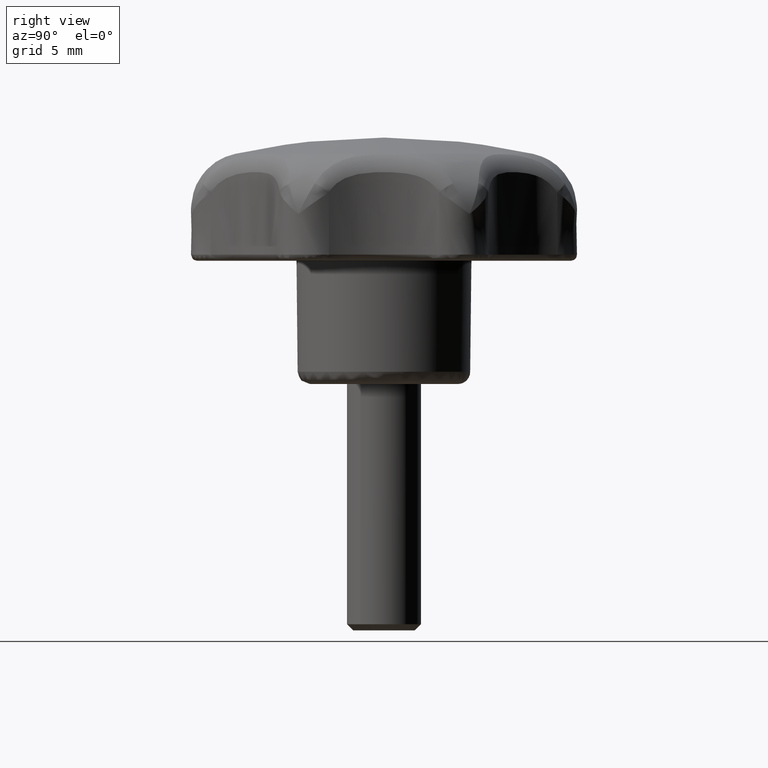
[diagram: clean part render]
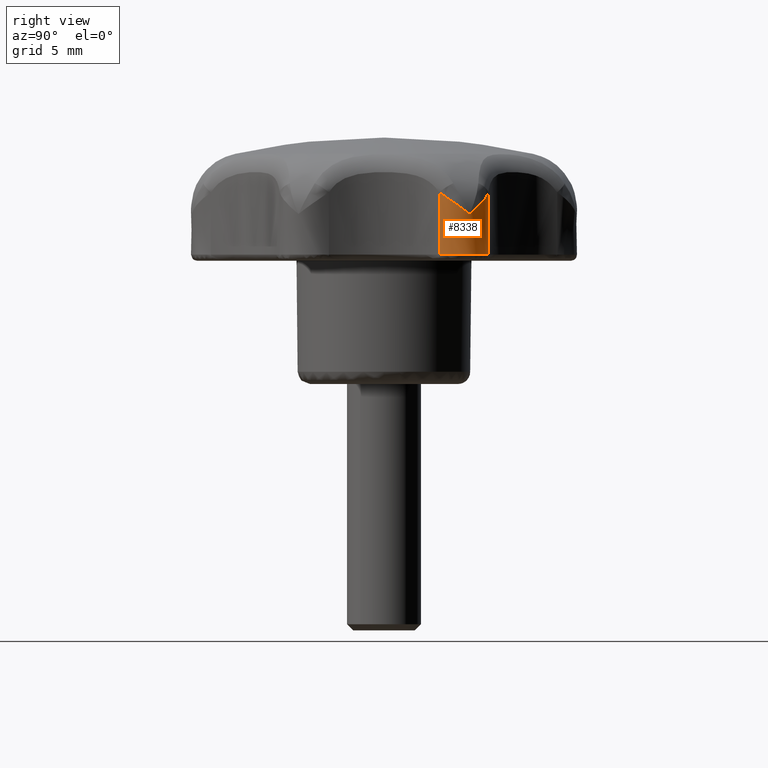
[diagram: same view with one face highlighted and labeled with its STEP entity id]
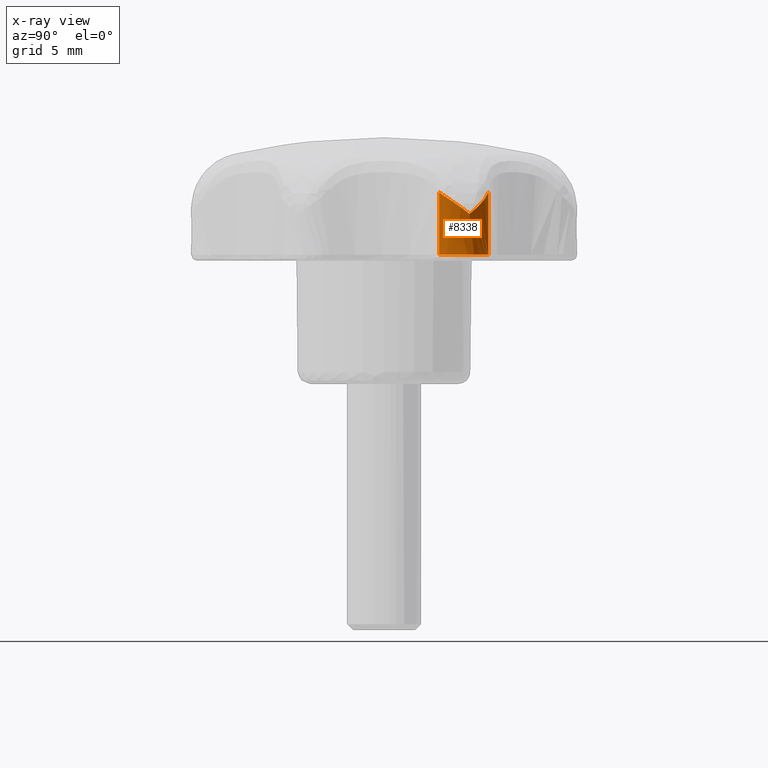
[diagram: x-ray of the same camera — body ghosted, the highlighted face saturated]
A machine part, right view. The second image highlights one B-rep face of the part: STEP entity #8338.
The next image is the same camera in x-ray: the body ghosted, the highlighted face saturated — about 0% of this face is hidden behind the body in this view.
In plain terms, the highlighted face is a freeform B-spline surface patch.
Its self-contained STEP definition (entity closure, byte-faithful):
#1496=CARTESIAN_POINT('',(14.415501690198379,6.942140544427049,13.799598391954920));
#1497=VERTEX_POINT('',#1496);
#3624=CARTESIAN_POINT('',(14.396864422175220,4.474426712598010,10.500000000000000));
#3625=VERTEX_POINT('',#3624);
#3747=CARTESIAN_POINT('',(12.474545056672300,8.466163127156561,10.500000000000000));
#3748=VERTEX_POINT('',#3747);
#3761=CARTESIAN_POINT('',(14.396864422175220,4.474426712598010,10.500000000000000));
#3762=CARTESIAN_POINT('',(14.504139069933849,4.688660698582601,10.499999999999970));
#3763=CARTESIAN_POINT('',(14.623327628013021,5.030826387052145,10.500000000000060));
#3764=CARTESIAN_POINT('',(14.699376142524720,5.558893137556151,10.499999999999950));
#3765=CARTESIAN_POINT('',(14.693462498331529,5.986616989614578,10.500000000000020));
#3766=CARTESIAN_POINT('',(14.603761232055600,6.485702228335067,10.500000000000000));
#3767=CARTESIAN_POINT('',(14.445099150270980,6.912276061478137,10.499999999999980));
#3768=CARTESIAN_POINT('',(14.203494574435579,7.327223490536375,10.499999999999950));
#3769=CARTESIAN_POINT('',(13.944064145352071,7.650023371667881,10.500000000000130));
#3770=CARTESIAN_POINT('',(13.568576651951849,7.990835671233446,10.499999999999940));
#3771=CARTESIAN_POINT('',(13.089337224014320,8.285669059290111,10.499999999999970));
#3772=CARTESIAN_POINT('',(12.682869123574600,8.421957784064160,10.500000000000250));
#3773=CARTESIAN_POINT('',(12.474545056672300,8.466163127156561,10.500000000000000));
#3774=B_SPLINE_CURVE_WITH_KNOTS('',3,(#3761,#3762,#3763,#3764,#3765,#3766,#3767,#3768,#3769,#3770,#3771,#3772,#3773),.UNSPECIFIED.,.F.,.U.,(4,1,1,1,1,1,1,1,1,1,4),(0.000000048232590,0.718749845650039,1.078138104664775,1.597249430486345,1.996568161849610,2.595508339827866,2.954886516636746,3.434073279071822,3.833384248957994,4.472292806817976,5.111177967224516),.UNSPECIFIED.);
#3775=EDGE_CURVE('',#3625,#3748,#3774,.T.);
#5459=CARTESIAN_POINT('',(14.396864422175220,4.474426712598010,15.546570736746050));
#5460=VERTEX_POINT('',#5459);
#5471=CARTESIAN_POINT('',(14.415501690198379,6.942140544427049,13.799598391954920));
#5472=CARTESIAN_POINT('',(14.421131595212801,6.930450143239541,13.808881016069961));
#5473=CARTESIAN_POINT('',(14.426739647122170,6.918595522087819,13.818524163455120));
#5474=CARTESIAN_POINT('',(14.437785531034100,6.894812388488785,13.837602632679880));
#5475=CARTESIAN_POINT('',(14.443226418729809,6.882878817869946,13.847136946372011));
#5476=CARTESIAN_POINT('',(14.459297017219770,6.846964461317419,13.875737991548650));
#5477=CARTESIAN_POINT('',(14.469675385856350,6.822868548007388,13.894800467329841));
#5478=CARTESIAN_POINT('',(14.499792708069201,6.750146844165708,13.951976287331130));
#5479=CARTESIAN_POINT('',(14.518512102809369,6.701090718427604,13.990073327120390));
#5480=CARTESIAN_POINT('',(14.570503440514400,6.552415049839042,14.104238856518149));
#5481=CARTESIAN_POINT('',(14.599607016182500,6.451301895331822,14.180171002122259));
#5482=CARTESIAN_POINT('',(14.646348700788440,6.245918797787762,14.331564011027821));
#5483=CARTESIAN_POINT('',(14.663929164835009,6.141937373980285,14.406813834540490));
#5484=CARTESIAN_POINT('',(14.687303837748310,5.931855792426321,14.556601146165210));
#5485=CARTESIAN_POINT('',(14.693082647084060,5.825699972717976,14.631173951952229));
#5486=CARTESIAN_POINT('',(14.692624923208200,5.666010450586487,14.742074442329081));
#5487=CARTESIAN_POINT('',(14.690946781237310,5.612577009546178,14.778969812839820));
#5488=CARTESIAN_POINT('',(14.684555380010080,5.506175492117650,14.852082377599340));
#5489=CARTESIAN_POINT('',(14.679847048022930,5.453155782170653,14.888336084847420));
#5490=CARTESIAN_POINT('',(14.661215947400811,5.294682903732297,14.996265366212960));
#5491=CARTESIAN_POINT('',(14.642798296183040,5.189814241805869,15.067110749433439));
#5492=CARTESIAN_POINT('',(14.569405143414640,4.877943854563681,15.276854742771770));
#5493=CARTESIAN_POINT('',(14.496524884651601,4.673620110473670,15.412964832369379));
#5494=CARTESIAN_POINT('',(14.396864422175220,4.474426712598010,15.546570736746050));
#5495=B_SPLINE_CURVE_WITH_KNOTS('',3,(#5471,#5472,#5473,#5474,#5475,#5476,#5477,#5478,#5479,#5480,#5481,#5482,#5483,#5484,#5485,#5486,#5487,#5488,#5489,#5490,#5491,#5492,#5493,#5494),.UNSPECIFIED.,.F.,.U.,(4,2,2,2,2,2,2,2,2,2,2,4),(0.0,0.015624999999999,0.031249999999999,0.062499999999998,0.124999999999999,0.249999999999998,0.374999999999997,0.499999999999996,0.562499999999997,0.624999999999997,0.749999999999998,1.0),.UNSPECIFIED.);
#5496=EDGE_CURVE('',#1497,#5460,#5495,.T.);
#6039=CARTESIAN_POINT('',(12.474545056672300,8.466163127156561,15.546570995254900));
#6040=VERTEX_POINT('',#6039);
#6134=CARTESIAN_POINT('',(12.474545056672300,8.466163127156561,15.546570995254900));
#6135=CARTESIAN_POINT('',(12.692417968748851,8.419886229593429,15.412964848172400));
#6136=CARTESIAN_POINT('',(12.897604904628221,8.349472524507002,15.276854694095849));
#6137=CARTESIAN_POINT('',(13.187194829122459,8.212405648156690,15.067110741687380));
#6138=CARTESIAN_POINT('',(13.280667672234379,8.161420614925591,14.996265358754680));
#6139=CARTESIAN_POINT('',(13.416183065949239,8.077180784493754,14.888336077590870));
#6140=CARTESIAN_POINT('',(13.460571143858481,8.047804662169977,14.852082370371569));
#6141=CARTESIAN_POINT('',(13.547744178789429,7.986461407534544,14.778969805588300));
#6142=CARTESIAN_POINT('',(13.590566432145270,7.954458230158560,14.742074435287320));
#6143=CARTESIAN_POINT('',(13.715702121975960,7.855251316314371,14.631173945626850));
#6144=CARTESIAN_POINT('',(13.795095061140520,7.784546197499941,14.556601140056131));
#6145=CARTESIAN_POINT('',(13.944769596682679,7.635287433872057,14.406813830270520));
#6146=CARTESIAN_POINT('',(14.015104314383210,7.556711122589300,14.331564006751069));
#6147=CARTESIAN_POINT('',(14.146536335770950,7.392112748723929,14.180170999374051));
#6148=CARTESIAN_POINT('',(14.207444008010389,7.306315642384302,14.104238854232589));
#6149=CARTESIAN_POINT('',(14.291267269004830,7.172969423222404,13.990073325700029));
#6150=CARTESIAN_POINT('',(14.317949544711469,7.127748019728391,13.951976286193190));
#6151=CARTESIAN_POINT('',(14.356027824976801,7.058860112306376,13.894800466606380));
#6152=CARTESIAN_POINT('',(14.368395963611221,7.035722422063515,13.875737990973830));
#6153=CARTESIAN_POINT('',(14.386455087026039,7.000765689083630,13.847136946011981));
#6154=CARTESIAN_POINT('',(14.392392791267200,6.989071372840384,13.837602632391169));
#6155=CARTESIAN_POINT('',(14.404100199953380,6.965606813037724,13.818524163309061));
#6156=CARTESIAN_POINT('',(14.409871953843110,6.953831026723094,13.808881015996990));
#6157=CARTESIAN_POINT('',(14.415501690198379,6.942140544427049,13.799598391954920));
#6158=B_SPLINE_CURVE_WITH_KNOTS('',3,(#6134,#6135,#6136,#6137,#6138,#6139,#6140,#6141,#6142,#6143,#6144,#6145,#6146,#6147,#6148,#6149,#6150,#6151,#6152,#6153,#6154,#6155,#6156,#6157),.UNSPECIFIED.,.F.,.U.,(4,2,2,2,2,2,2,2,2,2,2,4),(0.000000070868224,0.249999999999999,0.374999999999998,0.437499999999998,0.499999999999998,0.624999999999999,0.750000000000000,0.875000000000001,0.937500000000001,0.968750000000001,0.984375000000001,1.0),.UNSPECIFIED.);
#6159=EDGE_CURVE('',#6040,#1497,#6158,.T.);
#8149=CARTESIAN_POINT('',(12.474545056672300,8.466163127156561,15.546570995254900));
#8150=CARTESIAN_POINT('',(12.474545056672300,8.466163127156561,10.500000000000000));
#8151=QUASI_UNIFORM_CURVE('',1,(#8149,#8150),.UNSPECIFIED.,.F.,.U.);
#8152=EDGE_CURVE('',#6040,#3748,#8151,.T.);
#8184=CARTESIAN_POINT('',(14.396864422175220,4.474426712598010,15.546570736746050));
#8185=CARTESIAN_POINT('',(14.396864422175220,4.474426712598010,10.500000000000000));
#8186=QUASI_UNIFORM_CURVE('',1,(#8184,#8185),.UNSPECIFIED.,.F.,.U.);
#8187=EDGE_CURVE('',#5460,#3625,#8186,.T.);
#8317=CARTESIAN_POINT('',(14.363210828804331,4.409306976446138,15.672735270136270));
#8318=CARTESIAN_POINT('',(14.363210828804331,4.409306976446138,10.370681618246589));
#8319=CARTESIAN_POINT('',(16.210921234065371,7.872710645975483,15.672735270136270));
#8320=CARTESIAN_POINT('',(16.210921234065371,7.872710645975483,10.370681618246595));
#8321=CARTESIAN_POINT('',(12.334653063114420,8.492181215649120,15.672735270136270));
#8322=CARTESIAN_POINT('',(12.334653063114420,8.492181215649120,10.370681618246589));
#8330=(BOUNDED_SURFACE()B_SPLINE_SURFACE(1,2,((#8317,#8319,#8321),(#8318,#8320,#8322)),.UNSPECIFIED.,.F.,.F.,.U.)B_SPLINE_SURFACE_WITH_KNOTS((2,2),(3,3),(0.0,5.302053651889679),(0.0,5.768379044682562),.UNSPECIFIED.)GEOMETRIC_REPRESENTATION_ITEM()RATIONAL_B_SPLINE_SURFACE(((1.0,0.580702955710940,1.0),(1.0,0.580702955710940,1.0)))REPRESENTATION_ITEM('')SURFACE());
#8331=ORIENTED_EDGE('',*,*,#8187,.T.);
#8332=ORIENTED_EDGE('',*,*,#3775,.T.);
#8333=ORIENTED_EDGE('',*,*,#8152,.F.);
#8334=ORIENTED_EDGE('',*,*,#6159,.T.);
#8335=ORIENTED_EDGE('',*,*,#5496,.T.);
#8336=EDGE_LOOP('',(#8331,#8332,#8333,#8334,#8335));
#8337=FACE_OUTER_BOUND('',#8336,.T.);
#8338=ADVANCED_FACE('',(#8337),#8330,.T.);